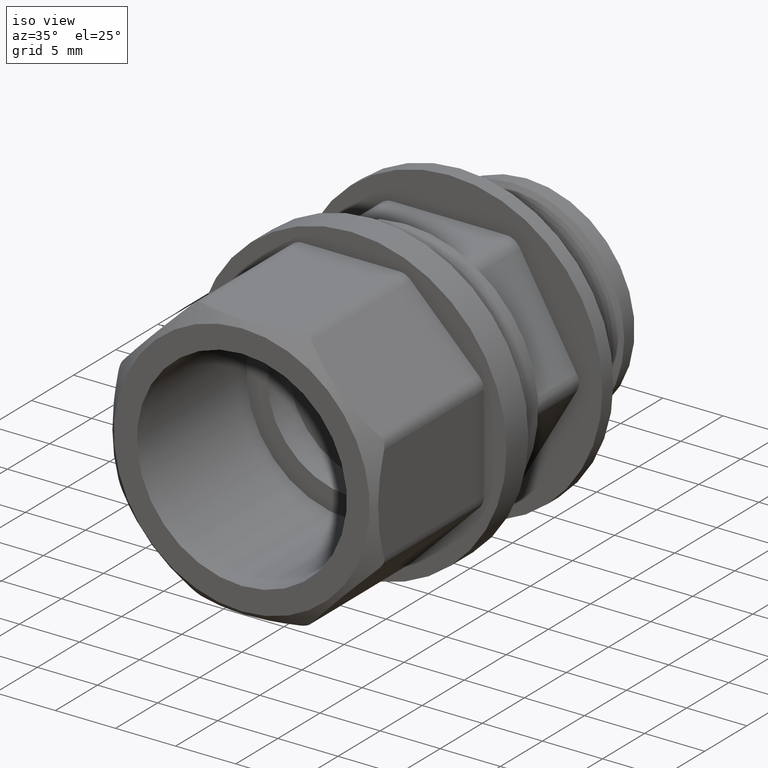
[diagram: clean part render]
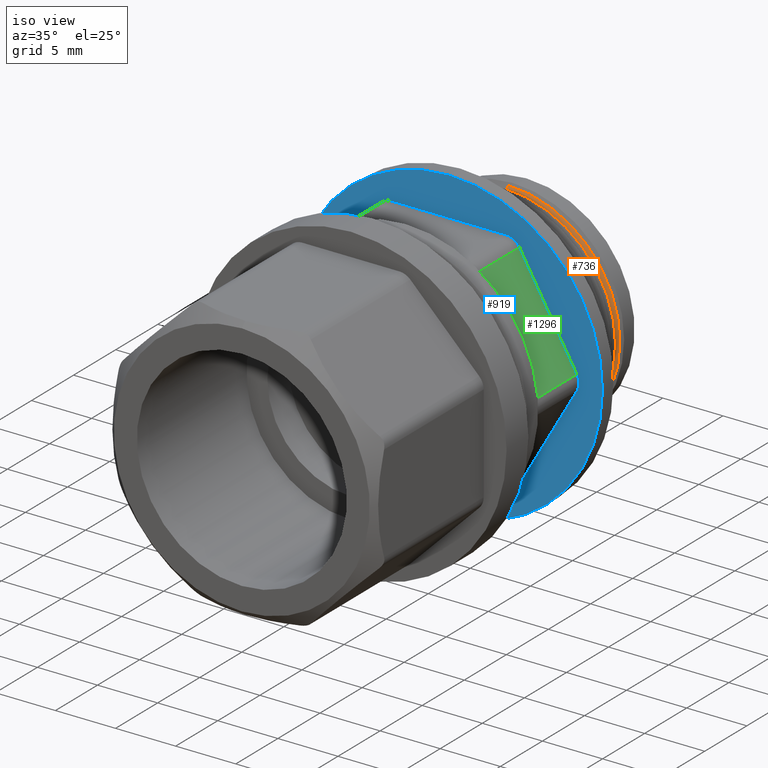
[diagram: same view with three faces highlighted in distinct colors, each labeled with its STEP entity id]
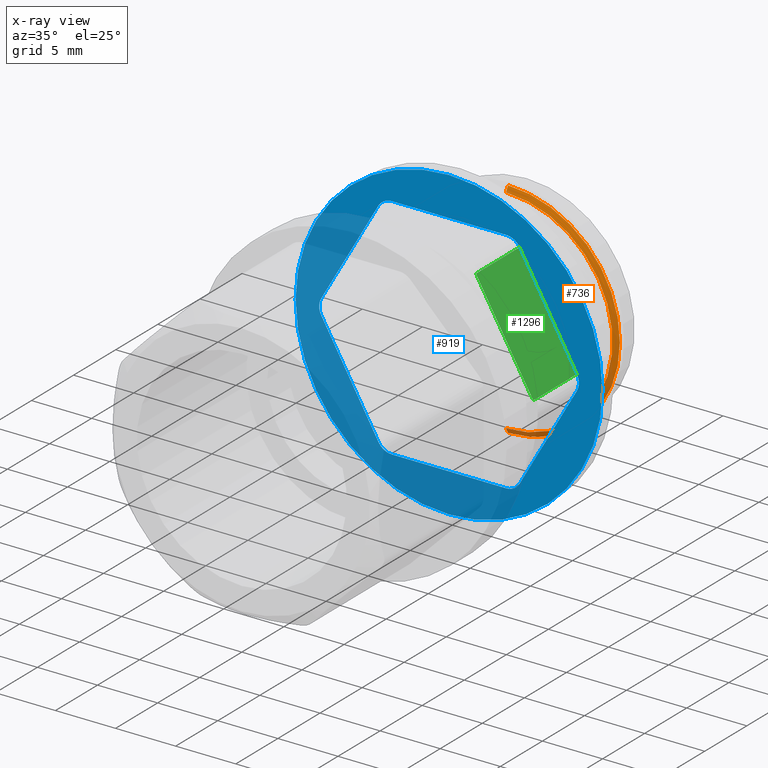
[diagram: x-ray of the same camera — body ghosted, the three highlighted faces saturated]
A machine part, iso view with three faces highlighted in distinct colors.
The next image is the same camera in x-ray (body ghosted, the three faces saturated) — at least one of them is partly hidden behind the body in this view.
Their STEP definitions:

[orange] entity #736 — the highlighted conical surface has half-angle 59.982 deg.
#505 = VERTEX_POINT ( 'NONE', #2122 ) ;
#506 = VERTEX_POINT ( 'NONE', #1660 ) ;
#507 = ORIENTED_EDGE ( 'NONE', *, *, #508, .T. ) ;
#508 = EDGE_CURVE ( 'NONE', #506, #593, #1976, .T. ) ;
#509 = ORIENTED_EDGE ( 'NONE', *, *, #592, .T. ) ;
#510 = ORIENTED_EDGE ( 'NONE', *, *, #511, .F. ) ;
#511 = EDGE_CURVE ( 'NONE', #505, #590, #2392, .T. ) ;
#590 = VERTEX_POINT ( 'NONE', #2339 ) ;
#592 = EDGE_CURVE ( 'NONE', #593, #590, #2271, .T. ) ;
#593 = VERTEX_POINT ( 'NONE', #2266 ) ;
#736 = ADVANCED_FACE ( 'NONE', ( #3650 ), #3655, .T. ) ;
#744 = EDGE_CURVE ( 'NONE', #505, #506, #3681, .T. ) ;
#747 = EDGE_LOOP ( 'NONE', ( #754, #507, #509, #510 ) ) ;
#754 = ORIENTED_EDGE ( 'NONE', *, *, #744, .T. ) ;
#1660 = CARTESIAN_POINT ( 'NONE',  ( 0.0000000000000000000, 1.234991837162775100, -0.3490145267796636000 ) ) ;
#1973 = DIRECTION ( 'NONE',  ( 1.060347798997379800E-016, 0.5002720452261503200, -0.8658682814177020000 ) ) ;
#1974 = VECTOR ( 'NONE', #1973, 39.37007874015748100 ) ;
#1975 = CARTESIAN_POINT ( 'NONE',  ( 4.274054070706863300E-017, 1.234991837162775100, -0.3490145267796636000 ) ) ;
#1976 = LINE ( 'NONE', #1975, #1974 ) ;
#2122 = CARTESIAN_POINT ( 'NONE',  ( 4.380108077955313600E-017, 1.234991837162775100, 0.3490145267796636000 ) ) ;
#2266 = CARTESIAN_POINT ( 'NONE',  ( 4.486162085203764600E-017, 1.244999092359754500, -0.3663350325760647600 ) ) ;
#2267 = DIRECTION ( 'NONE',  ( 0.0000000000000000000, 0.0000000000000000000, -1.000000000000000000 ) ) ;
#2268 = DIRECTION ( 'NONE',  ( 0.0000000000000000000, -1.000000000000000000, 0.0000000000000000000 ) ) ;
#2269 = CARTESIAN_POINT ( 'NONE',  ( 0.0000000000000000000, 1.244999092359754500, 0.0000000000000000000 ) ) ;
#2270 = AXIS2_PLACEMENT_3D ( 'NONE', #2269, #2268, #2267 ) ;
#2271 = CIRCLE ( 'NONE', #2270, 0.3663350325760648100 ) ;
#2339 = CARTESIAN_POINT ( 'NONE',  ( 0.0000000000000000000, 1.244999092359754500, 0.3663350325760647600 ) ) ;
#2379 = VECTOR ( 'NONE', #2390, 39.37007874015748100 ) ;
#2390 = DIRECTION ( 'NONE',  ( 0.0000000000000000000, 0.5002720452261503200, 0.8658682814177020000 ) ) ;
#2391 = CARTESIAN_POINT ( 'NONE',  ( 0.0000000000000000000, 1.234991837162775100, 0.3490145267796636000 ) ) ;
#2392 = LINE ( 'NONE', #2391, #2379 ) ;
#3650 = FACE_OUTER_BOUND ( 'NONE', #747, .T. ) ;
#3654 = CARTESIAN_POINT ( 'NONE',  ( 0.0000000000000000000, 1.234991837162775100, 0.0000000000000000000 ) ) ;
#3655 = CONICAL_SURFACE ( 'NONE', #3673, 0.3490145267796636000, 1.046883391931237300 ) ;
#3671 = DIRECTION ( 'NONE',  ( 0.0000000000000000000, 0.0000000000000000000, 1.000000000000000000 ) ) ;
#3672 = DIRECTION ( 'NONE',  ( -0.0000000000000000000, 1.000000000000000000, -0.0000000000000000000 ) ) ;
#3673 = AXIS2_PLACEMENT_3D ( 'NONE', #3654, #3672, #3671 ) ;
#3677 = DIRECTION ( 'NONE',  ( 0.0000000000000000000, 0.0000000000000000000, 1.000000000000000000 ) ) ;
#3678 = DIRECTION ( 'NONE',  ( -0.0000000000000000000, 1.000000000000000000, -0.0000000000000000000 ) ) ;
#3679 = CARTESIAN_POINT ( 'NONE',  ( 0.0000000000000000000, 1.234991837162775100, 0.0000000000000000000 ) ) ;
#3680 = AXIS2_PLACEMENT_3D ( 'NONE', #3679, #3678, #3677 ) ;
#3681 = CIRCLE ( 'NONE', #3680, 0.3490145267796636000 ) ;

[blue] entity #919 — the highlighted planar face has unit normal (0, -1, 0).
#905 = EDGE_CURVE ( 'NONE', #906, #922, #2737, .T. ) ;
#906 = VERTEX_POINT ( 'NONE', #2733 ) ;
#907 = ORIENTED_EDGE ( 'NONE', *, *, #908, .T. ) ;
#908 = EDGE_CURVE ( 'NONE', #906, #909, #2732, .T. ) ;
#909 = VERTEX_POINT ( 'NONE', #2727 ) ;
#912 = ORIENTED_EDGE ( 'NONE', *, *, #913, .F. ) ;
#913 = EDGE_CURVE ( 'NONE', #914, #909, #2726, .T. ) ;
#914 = VERTEX_POINT ( 'NONE', #2722 ) ;
#915 = ORIENTED_EDGE ( 'NONE', *, *, #1179, .T. ) ;
#919 = ADVANCED_FACE ( 'NONE', ( #2769, #2768 ), #2774, .T. ) ;
#920 = EDGE_LOOP ( 'NONE', ( #935, #936 ) ) ;
#921 = EDGE_CURVE ( 'NONE', #927, #922, #2762, .T. ) ;
#922 = VERTEX_POINT ( 'NONE', #2758 ) ;
#923 = ORIENTED_EDGE ( 'NONE', *, *, #905, .F. ) ;
#927 = VERTEX_POINT ( 'NONE', #2757 ) ;
#928 = VERTEX_POINT ( 'NONE', #2756 ) ;
#929 = ORIENTED_EDGE ( 'NONE', *, *, #921, .T. ) ;
#935 = ORIENTED_EDGE ( 'NONE', *, *, #996, .F. ) ;
#936 = ORIENTED_EDGE ( 'NONE', *, *, #992, .F. ) ;
#959 = VERTEX_POINT ( 'NONE', #3005 ) ;
#992 = EDGE_CURVE ( 'NONE', #959, #1005, #2977, .T. ) ;
#996 = EDGE_CURVE ( 'NONE', #1005, #959, #2961, .T. ) ;
#1005 = VERTEX_POINT ( 'NONE', #3070 ) ;
#1033 = VERTEX_POINT ( 'NONE', #3031 ) ;
#1037 = ORIENTED_EDGE ( 'NONE', *, *, #1038, .F. ) ;
#1038 = EDGE_CURVE ( 'NONE', #1173, #1052, #3188, .T. ) ;
#1047 = EDGE_CURVE ( 'NONE', #1061, #1033, #3195, .T. ) ;
#1048 = ORIENTED_EDGE ( 'NONE', *, *, #1047, .T. ) ;
#1050 = ORIENTED_EDGE ( 'NONE', *, *, #1051, .T. ) ;
#1051 = EDGE_CURVE ( 'NONE', #1173, #928, #3180, .T. ) ;
#1052 = VERTEX_POINT ( 'NONE', #3176 ) ;
#1054 = ORIENTED_EDGE ( 'NONE', *, *, #1058, .F. ) ;
#1057 = EDGE_CURVE ( 'NONE', #1061, #1180, #3135, .T. ) ;
#1058 = EDGE_CURVE ( 'NONE', #1059, #1033, #3131, .T. ) ;
#1059 = VERTEX_POINT ( 'NONE', #3209 ) ;
#1061 = VERTEX_POINT ( 'NONE', #3208 ) ;
#1170 = ORIENTED_EDGE ( 'NONE', *, *, #1171, .T. ) ;
#1171 = EDGE_CURVE ( 'NONE', #1059, #1052, #3308, .T. ) ;
#1173 = VERTEX_POINT ( 'NONE', #3365 ) ;
#1176 = EDGE_LOOP ( 'NONE', ( #1177, #929, #923, #907, #912, #915, #1181, #1048, #1054, #1170, #1037, #1050 ) ) ;
#1177 = ORIENTED_EDGE ( 'NONE', *, *, #1178, .F. ) ;
#1178 = EDGE_CURVE ( 'NONE', #927, #928, #3363, .T. ) ;
#1179 = EDGE_CURVE ( 'NONE', #914, #1180, #3359, .T. ) ;
#1180 = VERTEX_POINT ( 'NONE', #3354 ) ;
#1181 = ORIENTED_EDGE ( 'NONE', *, *, #1057, .F. ) ;
#2722 = CARTESIAN_POINT ( 'NONE',  ( 0.2309401076758504100, 0.9690000000000000800, -0.3500000000000000300 ) ) ;
#2723 = DIRECTION ( 'NONE',  ( 0.5000000000000001100, 0.0000000000000000000, 0.8660254037844386000 ) ) ;
#2724 = VECTOR ( 'NONE', #2723, 39.37007874015748100 ) ;
#2725 = CARTESIAN_POINT ( 'NONE',  ( 0.2165063509461097600, 0.9690000000000000800, -0.3750000000000000600 ) ) ;
#2726 = LINE ( 'NONE', #2725, #2724 ) ;
#2727 = CARTESIAN_POINT ( 'NONE',  ( 0.4185789451624789500, 0.9690000000000000800, -0.02499999999999980000 ) ) ;
#2728 = DIRECTION ( 'NONE',  ( 0.0000000000000000000, 0.0000000000000000000, -1.000000000000000000 ) ) ;
#2729 = DIRECTION ( 'NONE',  ( -0.0000000000000000000, 1.000000000000000000, -0.0000000000000000000 ) ) ;
#2730 = CARTESIAN_POINT ( 'NONE',  ( 0.3752776749732569800, 0.9690000000000000800, 2.048885995248197400E-016 ) ) ;
#2731 = AXIS2_PLACEMENT_3D ( 'NONE', #2730, #2729, #2728 ) ;
#2732 = CIRCLE ( 'NONE', #2731, 0.05000000000000000300 ) ;
#2733 = CARTESIAN_POINT ( 'NONE',  ( 0.4185789451624789000, 0.9690000000000000800, 0.02500000000000020600 ) ) ;
#2734 = DIRECTION ( 'NONE',  ( -0.4999999999999998300, 0.0000000000000000000, 0.8660254037844386000 ) ) ;
#2735 = VECTOR ( 'NONE', #2734, 39.37007874015748900 ) ;
#2736 = CARTESIAN_POINT ( 'NONE',  ( 0.4330127018922195800, 0.9690000000000000800, 1.621913589978838200E-016 ) ) ;
#2737 = LINE ( 'NONE', #2736, #2735 ) ;
#2756 = CARTESIAN_POINT ( 'NONE',  ( -0.1876388374866284600, 0.9690000000000000800, 0.3750000000000002200 ) ) ;
#2757 = CARTESIAN_POINT ( 'NONE',  ( 0.1876388374866287100, 0.9690000000000000800, 0.3750000000000001100 ) ) ;
#2758 = CARTESIAN_POINT ( 'NONE',  ( 0.2309401076758506300, 0.9690000000000000800, 0.3500000000000001400 ) ) ;
#2759 = DIRECTION ( 'NONE',  ( 2.048885995248196900E-015, 0.0000000000000000000, -1.000000000000000000 ) ) ;
#2760 = DIRECTION ( 'NONE',  ( -0.0000000000000000000, 1.000000000000000000, -0.0000000000000000000 ) ) ;
#2761 = AXIS2_PLACEMENT_3D ( 'NONE', #2764, #2760, #2759 ) ;
#2762 = CIRCLE ( 'NONE', #2761, 0.05000000000000001000 ) ;
#2763 = DIRECTION ( 'NONE',  ( 0.0000000000000000000, -0.0000000000000000000, -1.000000000000000000 ) ) ;
#2764 = CARTESIAN_POINT ( 'NONE',  ( 0.1876388374866287100, 0.9690000000000000800, 0.3250000000000000700 ) ) ;
#2765 = AXIS2_PLACEMENT_3D ( 'NONE', #2767, #2766, #2763 ) ;
#2766 = DIRECTION ( 'NONE',  ( 0.0000000000000000000, -1.000000000000000000, 0.0000000000000000000 ) ) ;
#2767 = CARTESIAN_POINT ( 'NONE',  ( 0.0000000000000000000, 0.9690000000000000800, 0.0000000000000000000 ) ) ;
#2768 = FACE_BOUND ( 'NONE', #1176, .T. ) ;
#2769 = FACE_OUTER_BOUND ( 'NONE', #920, .T. ) ;
#2774 = PLANE ( 'NONE',  #2765 ) ;
#2957 = DIRECTION ( 'NONE',  ( 0.0000000000000000000, 0.0000000000000000000, -1.000000000000000000 ) ) ;
#2958 = DIRECTION ( 'NONE',  ( -0.0000000000000000000, 1.000000000000000000, -0.0000000000000000000 ) ) ;
#2959 = CARTESIAN_POINT ( 'NONE',  ( 0.0000000000000000000, 0.9690000000000000800, 0.0000000000000000000 ) ) ;
#2960 = AXIS2_PLACEMENT_3D ( 'NONE', #2959, #2958, #2957 ) ;
#2961 = CIRCLE ( 'NONE', #2960, 0.5024249999999999000 ) ;
#2973 = DIRECTION ( 'NONE',  ( 0.0000000000000000000, 0.0000000000000000000, -1.000000000000000000 ) ) ;
#2974 = DIRECTION ( 'NONE',  ( -0.0000000000000000000, 1.000000000000000000, -0.0000000000000000000 ) ) ;
#2975 = CARTESIAN_POINT ( 'NONE',  ( 0.0000000000000000000, 0.9690000000000000800, 0.0000000000000000000 ) ) ;
#2976 = AXIS2_PLACEMENT_3D ( 'NONE', #2975, #2974, #2973 ) ;
#2977 = CIRCLE ( 'NONE', #2976, 0.5024249999999999000 ) ;
#3005 = CARTESIAN_POINT ( 'NONE',  ( 6.152728473192077700E-017, 0.9690000000000000800, -0.5024249999999999000 ) ) ;
#3031 = CARTESIAN_POINT ( 'NONE',  ( -0.2309401076758504900, 0.9690000000000000800, -0.3499999999999999800 ) ) ;
#3070 = CARTESIAN_POINT ( 'NONE',  ( 0.0000000000000000000, 0.9690000000000000800, 0.5024249999999999000 ) ) ;
#3129 = VECTOR ( 'NONE', #3210, 39.37007874015748100 ) ;
#3130 = CARTESIAN_POINT ( 'NONE',  ( -0.4330127018922194100, 0.9690000000000000800, 1.348292959726335600E-016 ) ) ;
#3131 = LINE ( 'NONE', #3130, #3129 ) ;
#3132 = DIRECTION ( 'NONE',  ( 1.000000000000000000, 0.0000000000000000000, -1.577233174527200600E-016 ) ) ;
#3133 = VECTOR ( 'NONE', #3132, 39.37007874015748100 ) ;
#3134 = CARTESIAN_POINT ( 'NONE',  ( -0.2165063509461098400, 0.9690000000000000800, -0.3749999999999999400 ) ) ;
#3135 = LINE ( 'NONE', #3134, #3133 ) ;
#3166 = DIRECTION ( 'NONE',  ( -0.5000000000000000000, 0.0000000000000000000, -0.8660254037844386000 ) ) ;
#3171 = DIRECTION ( 'NONE',  ( 0.0000000000000000000, 0.0000000000000000000, -1.000000000000000000 ) ) ;
#3172 = DIRECTION ( 'NONE',  ( -0.0000000000000000000, 1.000000000000000000, -0.0000000000000000000 ) ) ;
#3173 = CARTESIAN_POINT ( 'NONE',  ( -0.1876388374866285500, 0.9690000000000000800, -0.3249999999999999600 ) ) ;
#3174 = VECTOR ( 'NONE', #3166, 39.37007874015748900 ) ;
#3176 = CARTESIAN_POINT ( 'NONE',  ( -0.4185789451624787300, 0.9690000000000000800, 0.02500000000000014400 ) ) ;
#3177 = DIRECTION ( 'NONE',  ( 0.0000000000000000000, 0.0000000000000000000, -1.000000000000000000 ) ) ;
#3178 = DIRECTION ( 'NONE',  ( -0.0000000000000000000, 1.000000000000000000, -0.0000000000000000000 ) ) ;
#3179 = AXIS2_PLACEMENT_3D ( 'NONE', #3185, #3178, #3177 ) ;
#3180 = CIRCLE ( 'NONE', #3179, 0.05000000000000001000 ) ;
#3185 = CARTESIAN_POINT ( 'NONE',  ( -0.1876388374866284600, 0.9690000000000000800, 0.3250000000000002300 ) ) ;
#3188 = LINE ( 'NONE', #3212, #3174 ) ;
#3194 = AXIS2_PLACEMENT_3D ( 'NONE', #3173, #3172, #3171 ) ;
#3195 = CIRCLE ( 'NONE', #3194, 0.05000000000000001000 ) ;
#3208 = CARTESIAN_POINT ( 'NONE',  ( -0.1876388374866285500, 0.9690000000000000800, -0.3749999999999999400 ) ) ;
#3209 = CARTESIAN_POINT ( 'NONE',  ( -0.4185789451624787300, 0.9690000000000000800, -0.02499999999999991100 ) ) ;
#3210 = DIRECTION ( 'NONE',  ( 0.4999999999999998300, 0.0000000000000000000, -0.8660254037844388200 ) ) ;
#3212 = CARTESIAN_POINT ( 'NONE',  ( -0.2165063509461096800, 0.9690000000000000800, 0.3750000000000002200 ) ) ;
#3308 = CIRCLE ( 'NONE', #3369, 0.05000000000000000300 ) ;
#3309 = CARTESIAN_POINT ( 'NONE',  ( -0.3752776749732568100, 0.9690000000000000800, 6.829619984160658000E-017 ) ) ;
#3354 = CARTESIAN_POINT ( 'NONE',  ( 0.1876388374866284600, 0.9690000000000000800, -0.3750000000000000600 ) ) ;
#3355 = DIRECTION ( 'NONE',  ( 3.414809992080328300E-015, 0.0000000000000000000, -1.000000000000000000 ) ) ;
#3356 = DIRECTION ( 'NONE',  ( -0.0000000000000000000, 1.000000000000000000, -0.0000000000000000000 ) ) ;
#3357 = CARTESIAN_POINT ( 'NONE',  ( 0.1876388374866284600, 0.9690000000000000800, -0.3250000000000000100 ) ) ;
#3358 = AXIS2_PLACEMENT_3D ( 'NONE', #3357, #3356, #3355 ) ;
#3359 = CIRCLE ( 'NONE', #3358, 0.05000000000000001000 ) ;
#3360 = DIRECTION ( 'NONE',  ( -1.000000000000000000, 0.0000000000000000000, 3.154466349054400200E-016 ) ) ;
#3361 = VECTOR ( 'NONE', #3360, 39.37007874015748100 ) ;
#3362 = CARTESIAN_POINT ( 'NONE',  ( 0.2165063509461099800, 0.9690000000000000800, 0.3750000000000001100 ) ) ;
#3363 = LINE ( 'NONE', #3362, #3361 ) ;
#3365 = CARTESIAN_POINT ( 'NONE',  ( -0.2309401076758503500, 0.9690000000000000800, 0.3500000000000002600 ) ) ;
#3367 = DIRECTION ( 'NONE',  ( 0.0000000000000000000, 0.0000000000000000000, -1.000000000000000000 ) ) ;
#3368 = DIRECTION ( 'NONE',  ( -0.0000000000000000000, 1.000000000000000000, -0.0000000000000000000 ) ) ;
#3369 = AXIS2_PLACEMENT_3D ( 'NONE', #3309, #3368, #3367 ) ;

[green] entity #1296 — the highlighted planar face has unit normal (0.866, -0, 0.5).
#905 = EDGE_CURVE ( 'NONE', #906, #922, #2737, .T. ) ;
#906 = VERTEX_POINT ( 'NONE', #2733 ) ;
#922 = VERTEX_POINT ( 'NONE', #2758 ) ;
#944 = VERTEX_POINT ( 'NONE', #2705 ) ;
#947 = VERTEX_POINT ( 'NONE', #2704 ) ;
#1209 = EDGE_LOOP ( 'NONE', ( #1237, #1272, #1297, #1281 ) ) ;
#1237 = ORIENTED_EDGE ( 'NONE', *, *, #905, .T. ) ;
#1238 = EDGE_CURVE ( 'NONE', #922, #944, #3487, .T. ) ;
#1272 = ORIENTED_EDGE ( 'NONE', *, *, #1238, .T. ) ;
#1281 = ORIENTED_EDGE ( 'NONE', *, *, #1292, .T. ) ;
#1292 = EDGE_CURVE ( 'NONE', #947, #906, #3557, .T. ) ;
#1296 = ADVANCED_FACE ( 'NONE', ( #3439 ), #3438, .T. ) ;
#1297 = ORIENTED_EDGE ( 'NONE', *, *, #1298, .F. ) ;
#1298 = EDGE_CURVE ( 'NONE', #947, #944, #3530, .T. ) ;
#2704 = CARTESIAN_POINT ( 'NONE',  ( 0.4185789451624789000, 0.7650000000000000100, 0.02500000000000020600 ) ) ;
#2705 = CARTESIAN_POINT ( 'NONE',  ( 0.2309401076758506300, 0.7650000000000000100, 0.3500000000000001400 ) ) ;
#2733 = CARTESIAN_POINT ( 'NONE',  ( 0.4185789451624789000, 0.9690000000000000800, 0.02500000000000020600 ) ) ;
#2734 = DIRECTION ( 'NONE',  ( -0.4999999999999998300, 0.0000000000000000000, 0.8660254037844386000 ) ) ;
#2735 = VECTOR ( 'NONE', #2734, 39.37007874015748900 ) ;
#2736 = CARTESIAN_POINT ( 'NONE',  ( 0.4330127018922195800, 0.9690000000000000800, 1.621913589978838200E-016 ) ) ;
#2737 = LINE ( 'NONE', #2736, #2735 ) ;
#2758 = CARTESIAN_POINT ( 'NONE',  ( 0.2309401076758506300, 0.9690000000000000800, 0.3500000000000001400 ) ) ;
#3438 = PLANE ( 'NONE',  #3531 ) ;
#3439 = FACE_OUTER_BOUND ( 'NONE', #1209, .T. ) ;
#3484 = DIRECTION ( 'NONE',  ( 0.0000000000000000000, -1.000000000000000000, 0.0000000000000000000 ) ) ;
#3485 = VECTOR ( 'NONE', #3484, 39.37007874015748100 ) ;
#3486 = CARTESIAN_POINT ( 'NONE',  ( 0.2309401076758506600, 0.9690000000000000800, 0.3500000000000000900 ) ) ;
#3487 = LINE ( 'NONE', #3486, #3485 ) ;
#3518 = DIRECTION ( 'NONE',  ( -0.4999999999999998300, 0.0000000000000000000, 0.8660254037844386000 ) ) ;
#3519 = VECTOR ( 'NONE', #3518, 39.37007874015748900 ) ;
#3526 = DIRECTION ( 'NONE',  ( 0.4999999999999998300, 0.0000000000000000000, -0.8660254037844386000 ) ) ;
#3527 = DIRECTION ( 'NONE',  ( 0.8660254037844387100, -0.0000000000000000000, 0.4999999999999998900 ) ) ;
#3528 = CARTESIAN_POINT ( 'NONE',  ( 0.4330127018922195800, 0.9690000000000000800, 1.621913589978838200E-016 ) ) ;
#3529 = CARTESIAN_POINT ( 'NONE',  ( 0.4330127018922195800, 0.7650000000000000100, 1.621913589978838200E-016 ) ) ;
#3530 = LINE ( 'NONE', #3529, #3519 ) ;
#3531 = AXIS2_PLACEMENT_3D ( 'NONE', #3528, #3527, #3526 ) ;
#3534 = DIRECTION ( 'NONE',  ( -0.0000000000000000000, 1.000000000000000000, -0.0000000000000000000 ) ) ;
#3535 = VECTOR ( 'NONE', #3534, 39.37007874015748100 ) ;
#3536 = CARTESIAN_POINT ( 'NONE',  ( 0.4185789451624789000, 0.9690000000000000800, 0.02500000000000020300 ) ) ;
#3557 = LINE ( 'NONE', #3536, #3535 ) ;